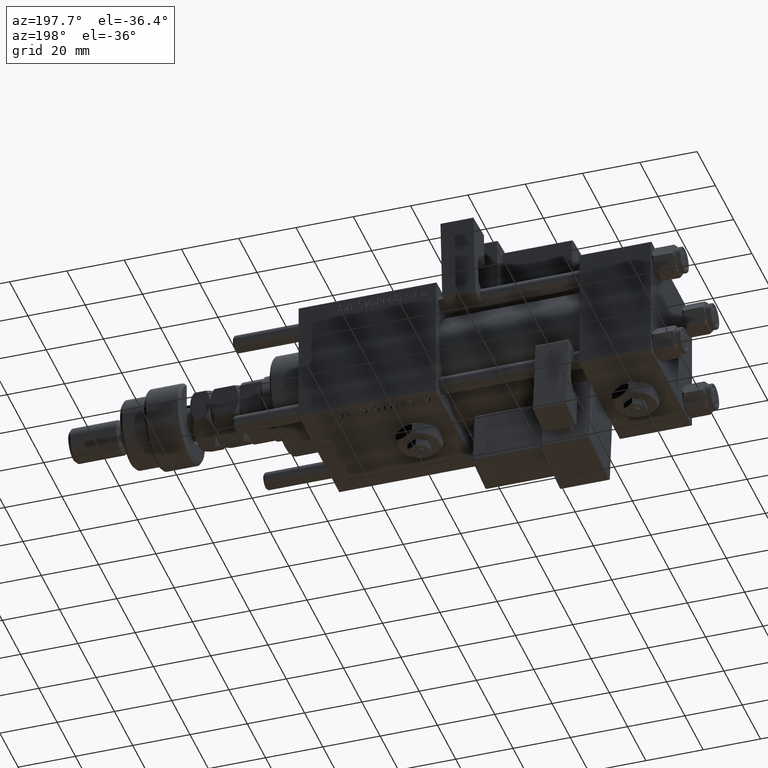
[diagram: clean part render]
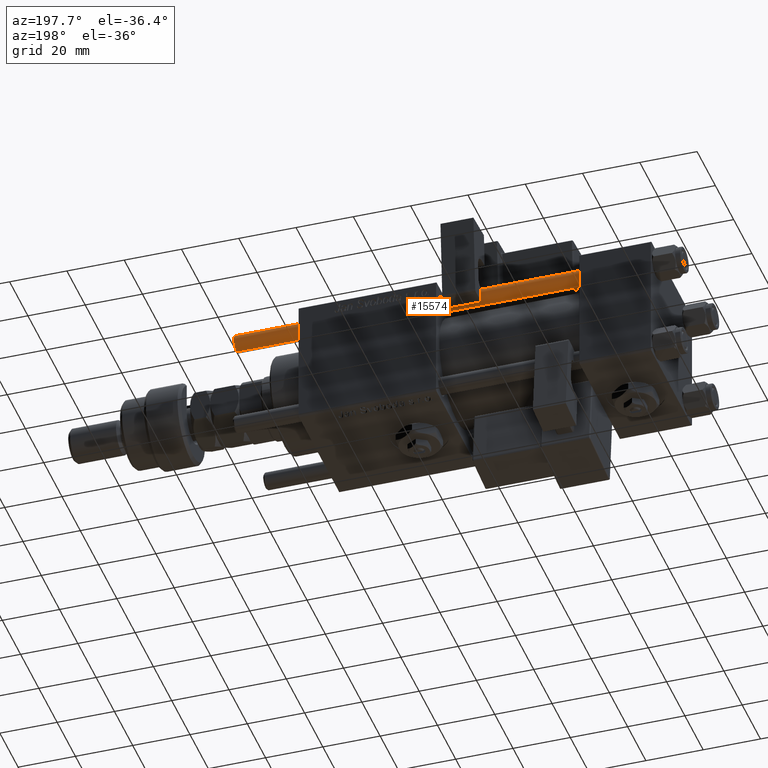
[diagram: same view with one face highlighted and labeled with its STEP entity id]
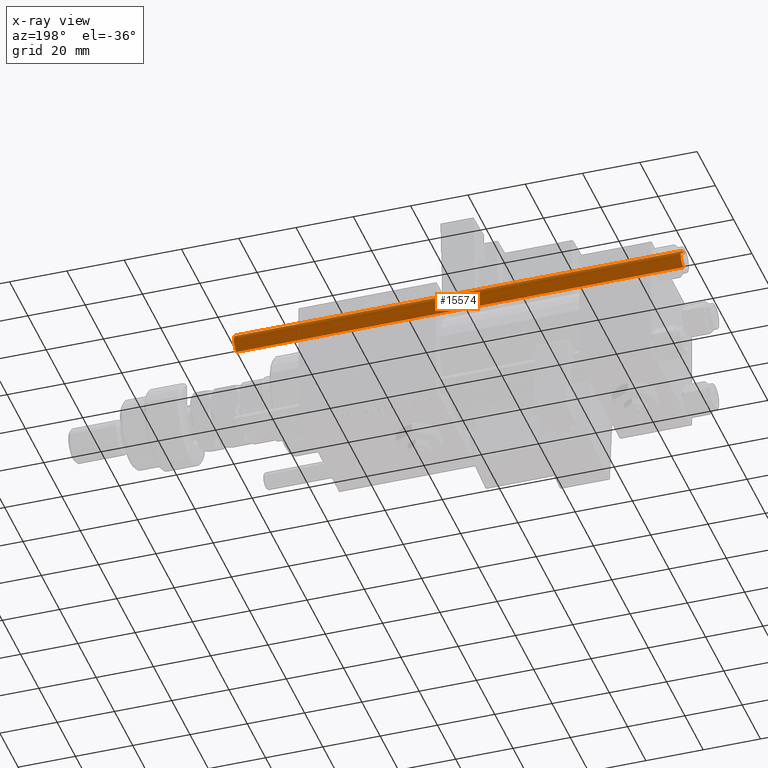
[diagram: x-ray of the same camera — body ghosted, the highlighted face saturated]
A machine part, auxiliary view. The second image highlights one B-rep face of the part: STEP entity #15574.
The next image is the same camera in x-ray: the body ghosted, the highlighted face saturated — about 0% of this face is hidden behind the body in this view.
In plain terms, the highlighted cylindrical surface (edge-blend (fillet) strip) has radius 3 mm, axis along (1, -0, -0).
Its self-contained STEP definition (entity closure, byte-faithful):
#2923 = EDGE_LOOP ( 'NONE', ( #15110, #34922, #10862, #47755 ) ) ;
#3078 = CARTESIAN_POINT ( 'NONE',  ( 3.000000000000000444, 3.673940397442060361E-16, 0.4999999999999726885 ) ) ;
#4404 = AXIS2_PLACEMENT_3D ( 'NONE', #44706, #38910, #5307 ) ;
#4477 = DIRECTION ( 'NONE',  ( -0.000000000000000000, -0.000000000000000000, 1.000000000000000000 ) ) ;
#5218 = DIRECTION ( 'NONE',  ( -0.000000000000000000, -0.000000000000000000, -1.000000000000000000 ) ) ;
#5307 = DIRECTION ( 'NONE',  ( 1.000000000000000000, 0.000000000000000000, 0.000000000000000000 ) ) ;
#6000 = VERTEX_POINT ( 'NONE', #47597 ) ;
#9240 = EDGE_CURVE ( 'NONE', #24601, #6000, #37828, .T. ) ;
#10862 = ORIENTED_EDGE ( 'NONE', *, *, #9240, .T. ) ;
#14895 = LINE ( 'NONE', #24911, #58498 ) ;
#15110 = ORIENTED_EDGE ( 'NONE', *, *, #17115, .T. ) ;
#15574 = ADVANCED_FACE ( 'NONE', ( #23804 ), #43498, .T. ) ;
#17115 = EDGE_CURVE ( 'NONE', #47514, #29767, #56022, .T. ) ;
#17995 = DIRECTION ( 'NONE',  ( -0.000000000000000000, -0.000000000000000000, -1.000000000000000000 ) ) ;
#20552 = VECTOR ( 'NONE', #62596, 1000.000000000000000 ) ;
#23151 = CARTESIAN_POINT ( 'NONE',  ( 3.000000000000000444, 3.673940397442060361E-16, 157.0000000000000000 ) ) ;
#23804 = FACE_OUTER_BOUND ( 'NONE', #2923, .T. ) ;
#24601 = VERTEX_POINT ( 'NONE', #3078 ) ;
#24911 = CARTESIAN_POINT ( 'NONE',  ( -3.000000000000000444, 0.000000000000000000, 157.0000000000000000 ) ) ;
#26971 = CARTESIAN_POINT ( 'NONE',  ( 3.000000000000000444, 3.673940397442060361E-16, 156.5000000000000284 ) ) ;
#29767 = VERTEX_POINT ( 'NONE', #26971 ) ;
#34279 = AXIS2_PLACEMENT_3D ( 'NONE', #38018, #17995, #61993 ) ;
#34922 = ORIENTED_EDGE ( 'NONE', *, *, #53448, .T. ) ;
#37828 = CIRCLE ( 'NONE', #60645, 3.000000000000000444 ) ;
#38018 = CARTESIAN_POINT ( 'NONE',  ( 0.000000000000000000, 0.000000000000000000, 157.0000000000000000 ) ) ;
#38910 = DIRECTION ( 'NONE',  ( 0.000000000000000000, 0.000000000000000000, -1.000000000000000000 ) ) ;
#42165 = CARTESIAN_POINT ( 'NONE',  ( -3.000000000000000444, 0.000000000000000000, 156.5000000000000284 ) ) ;
#43498 = CYLINDRICAL_SURFACE ( 'NONE', #34279, 3.000000000000000444 ) ;
#44706 = CARTESIAN_POINT ( 'NONE',  ( 0.000000000000000000, 0.000000000000000000, 156.5000000000000284 ) ) ;
#47514 = VERTEX_POINT ( 'NONE', #42165 ) ;
#47597 = CARTESIAN_POINT ( 'NONE',  ( -3.000000000000000444, 0.000000000000000000, 0.4999999999999726885 ) ) ;
#47755 = ORIENTED_EDGE ( 'NONE', *, *, #47970, .F. ) ;
#47970 = EDGE_CURVE ( 'NONE', #47514, #6000, #14895, .T. ) ;
#48744 = CARTESIAN_POINT ( 'NONE',  ( 0.000000000000000000, 0.000000000000000000, 0.4999999999999726885 ) ) ;
#53448 = EDGE_CURVE ( 'NONE', #29767, #24601, #62288, .T. ) ;
#54219 = DIRECTION ( 'NONE',  ( 1.000000000000000000, 0.000000000000000000, 0.000000000000000000 ) ) ;
#56022 = CIRCLE ( 'NONE', #4404, 3.000000000000000444 ) ;
#58498 = VECTOR ( 'NONE', #5218, 1000.000000000000000 ) ;
#60645 = AXIS2_PLACEMENT_3D ( 'NONE', #48744, #4477, #54219 ) ;
#61993 = DIRECTION ( 'NONE',  ( -1.000000000000000000, 0.000000000000000000, 0.000000000000000000 ) ) ;
#62288 = LINE ( 'NONE', #23151, #20552 ) ;
#62596 = DIRECTION ( 'NONE',  ( -0.000000000000000000, -0.000000000000000000, -1.000000000000000000 ) ) ;